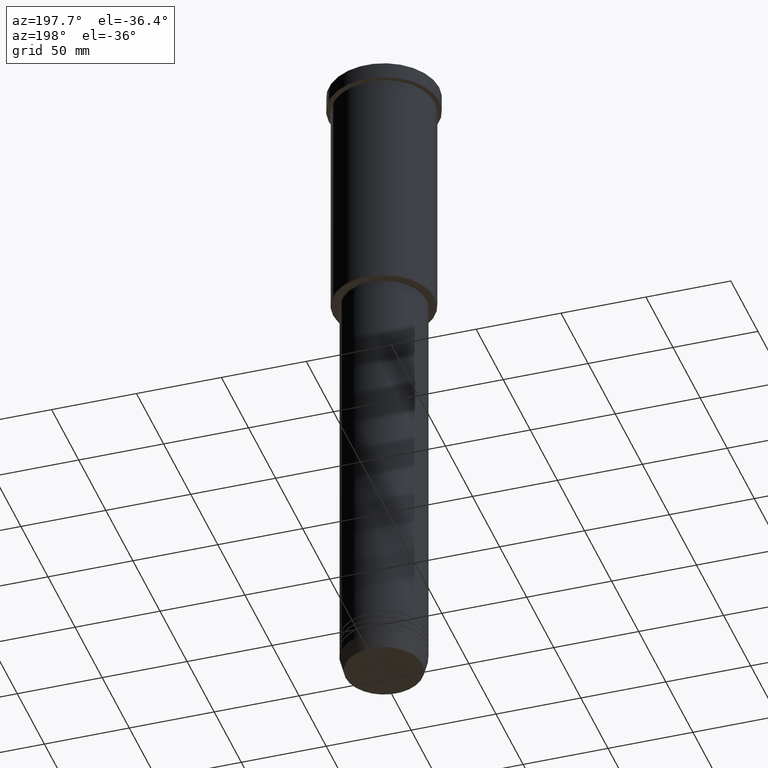
[diagram: clean part render]
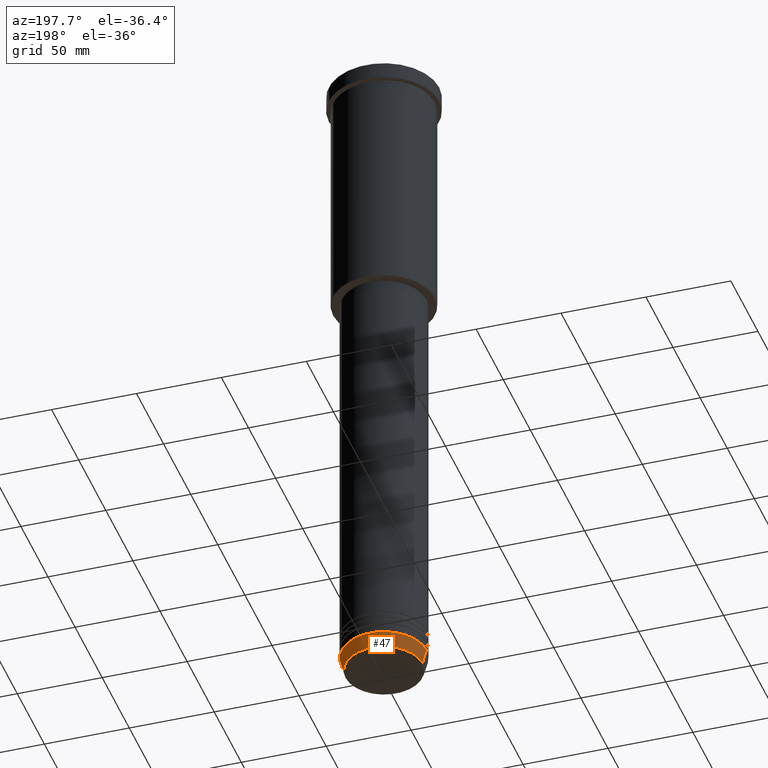
[diagram: same view with one face highlighted and labeled with its STEP entity id]
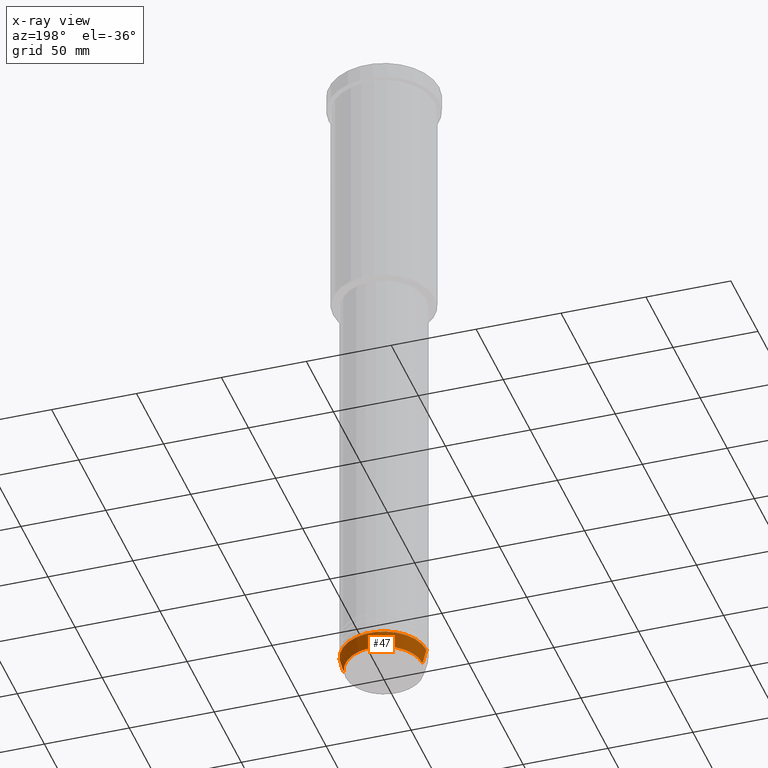
[diagram: x-ray of the same camera — body ghosted, the highlighted face saturated]
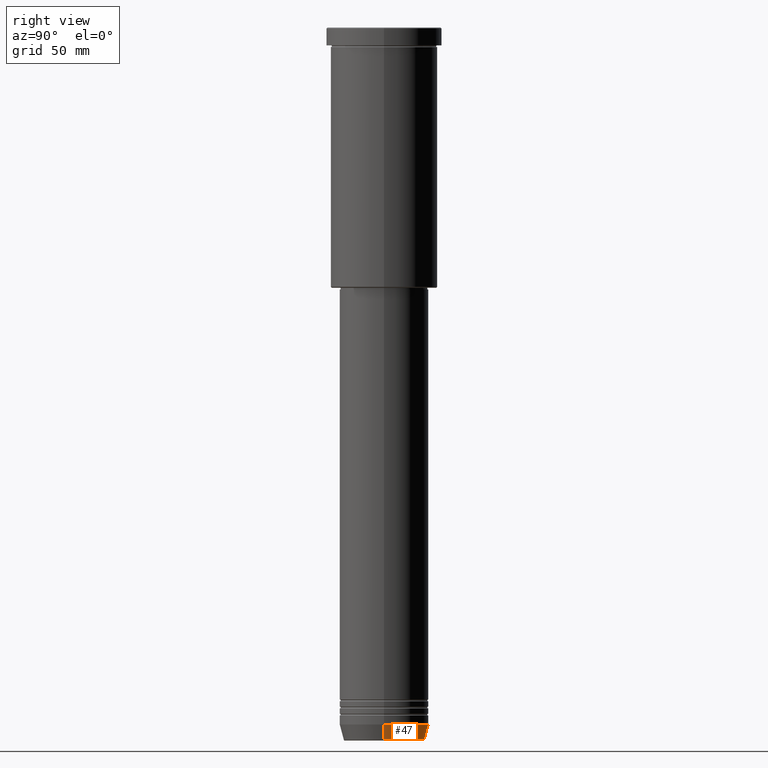
[diagram: same view with one face highlighted and labeled with its STEP entity id]
A machine part, auxiliary view. The second image highlights one B-rep face of the part: STEP entity #47.
The next image is the same camera in x-ray: the body ghosted, the highlighted face saturated — about 0% of this face is hidden behind the body in this view.
A second angle (right view) of the same face is appended — the face is thin or edge-on in the first view.
In plain terms, the highlighted conical surface has half-angle 15 deg.
Its self-contained STEP definition (entity closure, byte-faithful):
#47 = ADVANCED_FACE ( 'NONE', ( #1078 ), #179, .T. ) ;
#75 = DIRECTION ( 'NONE',  ( -0.000000000000000000, -0.000000000000000000, 1.000000000000000000 ) ) ;
#98 = DIRECTION ( 'NONE',  ( 1.000000000000000000, 0.000000000000000000, 0.000000000000000000 ) ) ;
#179 = CONICAL_SURFACE ( 'NONE', #661, 25.00000000000000000, 0.2617993877991502960 ) ;
#191 = DIRECTION ( 'NONE',  ( 1.000000000000000000, 0.000000000000000000, 0.000000000000000000 ) ) ;
#195 = CARTESIAN_POINT ( 'NONE',  ( 0.000000000000000000, 0.000000000000000000, -391.0000000000000000 ) ) ;
#203 = AXIS2_PLACEMENT_3D ( 'NONE', #1165, #75, #1076 ) ;
#237 = ORIENTED_EDGE ( 'NONE', *, *, #451, .T. ) ;
#280 = CARTESIAN_POINT ( 'NONE',  ( 0.000000000000000000, 0.000000000000000000, -391.0000000000000000 ) ) ;
#338 = EDGE_CURVE ( 'NONE', #776, #1103, #711, .T. ) ;
#414 = CARTESIAN_POINT ( 'NONE',  ( -22.68775668727494477, 2.920032929279452581E-15, -399.6294095225512706 ) ) ;
#451 = EDGE_CURVE ( 'NONE', #787, #1148, #1155, .T. ) ;
#457 = ORIENTED_EDGE ( 'NONE', *, *, #338, .F. ) ;
#477 = ORIENTED_EDGE ( 'NONE', *, *, #1014, .T. ) ;
#480 = CARTESIAN_POINT ( 'NONE',  ( -25.00000000000000000, 3.061616997868383043E-15, -391.0000000000000000 ) ) ;
#482 = DIRECTION ( 'NONE',  ( -0.000000000000000000, -0.000000000000000000, 1.000000000000000000 ) ) ;
#496 = AXIS2_PLACEMENT_3D ( 'NONE', #195, #482, #98 ) ;
#522 = EDGE_CURVE ( 'NONE', #1103, #1148, #753, .T. ) ;
#594 = CIRCLE ( 'NONE', #203, 22.68775668727494477 ) ;
#625 = DIRECTION ( 'NONE',  ( 0.2588190451025215166, 0.000000000000000000, 0.9659258262890679791 ) ) ;
#652 = DIRECTION ( 'NONE',  ( -0.000000000000000000, -0.000000000000000000, 1.000000000000000000 ) ) ;
#661 = AXIS2_PLACEMENT_3D ( 'NONE', #280, #652, #191 ) ;
#682 = CARTESIAN_POINT ( 'NONE',  ( -25.00000000000000000, 3.061616997868383043E-15, -391.0000000000000000 ) ) ;
#711 = LINE ( 'NONE', #1070, #871 ) ;
#753 = CIRCLE ( 'NONE', #496, 25.00000000000000000 ) ;
#776 = VERTEX_POINT ( 'NONE', #947 ) ;
#787 = VERTEX_POINT ( 'NONE', #414 ) ;
#789 = ORIENTED_EDGE ( 'NONE', *, *, #522, .F. ) ;
#871 = VECTOR ( 'NONE', #625, 1000.000000000000114 ) ;
#895 = EDGE_LOOP ( 'NONE', ( #477, #237, #789, #457 ) ) ;
#947 = CARTESIAN_POINT ( 'NONE',  ( 22.68775668727494477, 0.000000000000000000, -399.6294095225512706 ) ) ;
#1003 = CARTESIAN_POINT ( 'NONE',  ( 25.00000000000000000, 0.000000000000000000, -391.0000000000000000 ) ) ;
#1014 = EDGE_CURVE ( 'NONE', #776, #787, #594, .T. ) ;
#1040 = DIRECTION ( 'NONE',  ( -0.2588190451025215166, 3.169619151431774802E-17, 0.9659258262890679791 ) ) ;
#1064 = VECTOR ( 'NONE', #1040, 1000.000000000000114 ) ;
#1070 = CARTESIAN_POINT ( 'NONE',  ( 25.00000000000000000, 0.000000000000000000, -391.0000000000000000 ) ) ;
#1076 = DIRECTION ( 'NONE',  ( 1.000000000000000000, 0.000000000000000000, 0.000000000000000000 ) ) ;
#1078 = FACE_OUTER_BOUND ( 'NONE', #895, .T. ) ;
#1103 = VERTEX_POINT ( 'NONE', #1003 ) ;
#1148 = VERTEX_POINT ( 'NONE', #480 ) ;
#1155 = LINE ( 'NONE', #682, #1064 ) ;
#1165 = CARTESIAN_POINT ( 'NONE',  ( 0.000000000000000000, 0.000000000000000000, -399.6294095225512706 ) ) ;